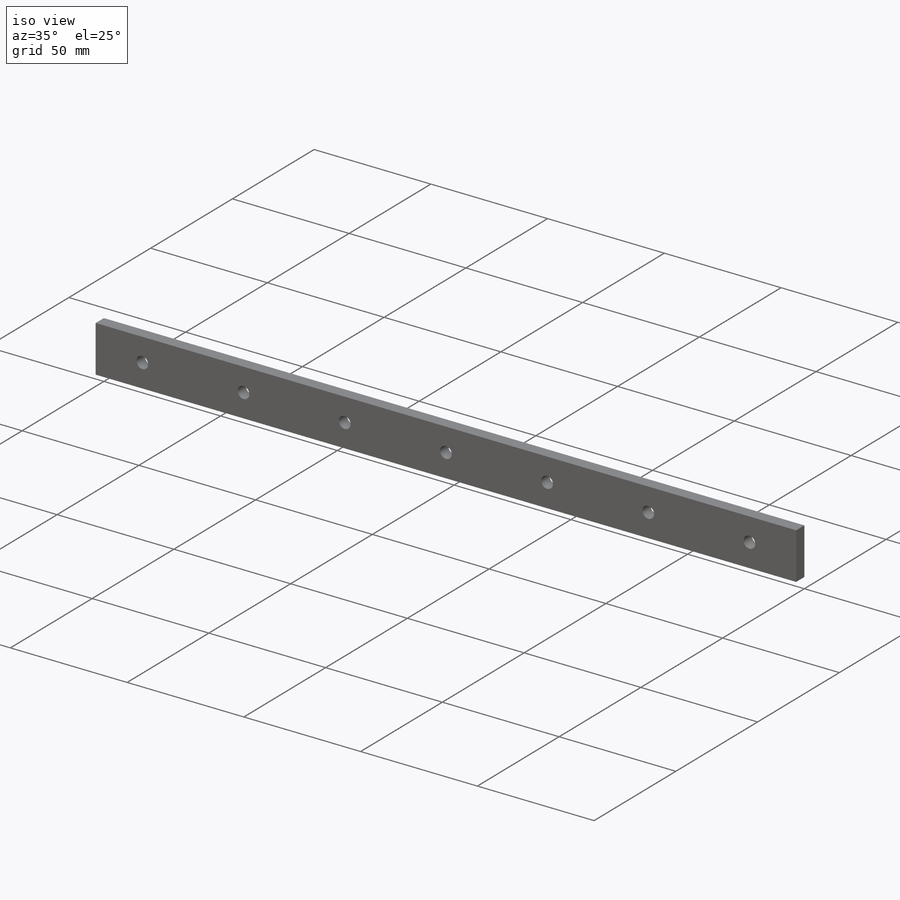
[diagram: iso view]
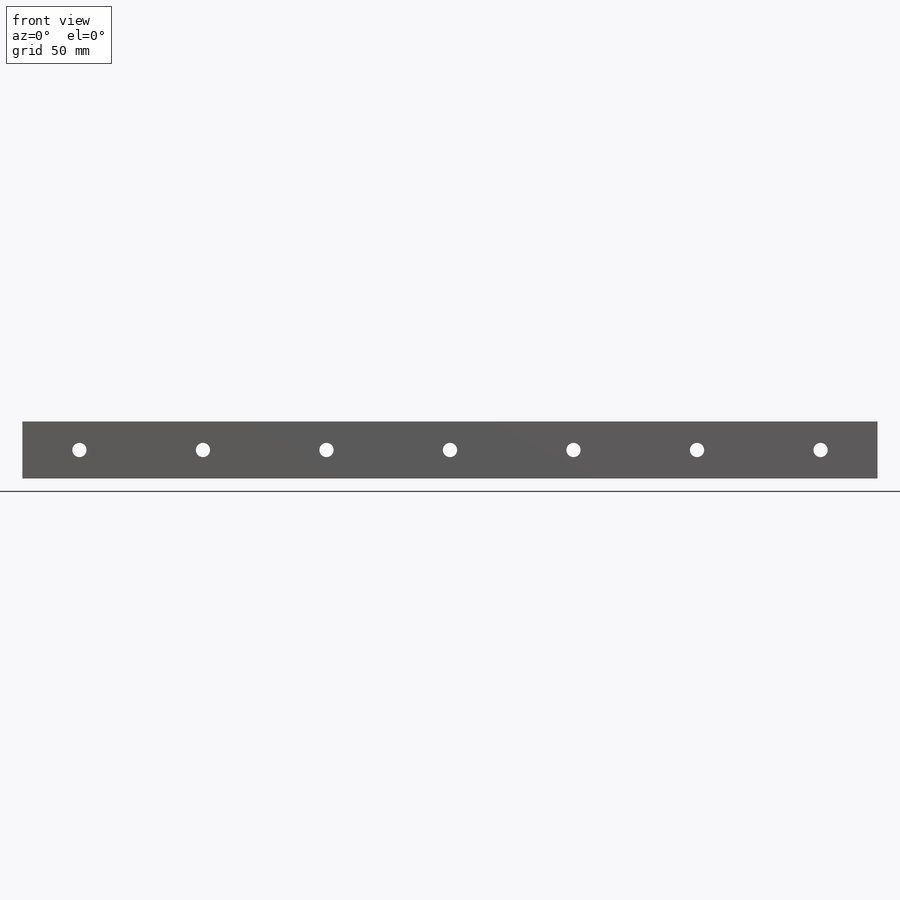
[diagram: front view]
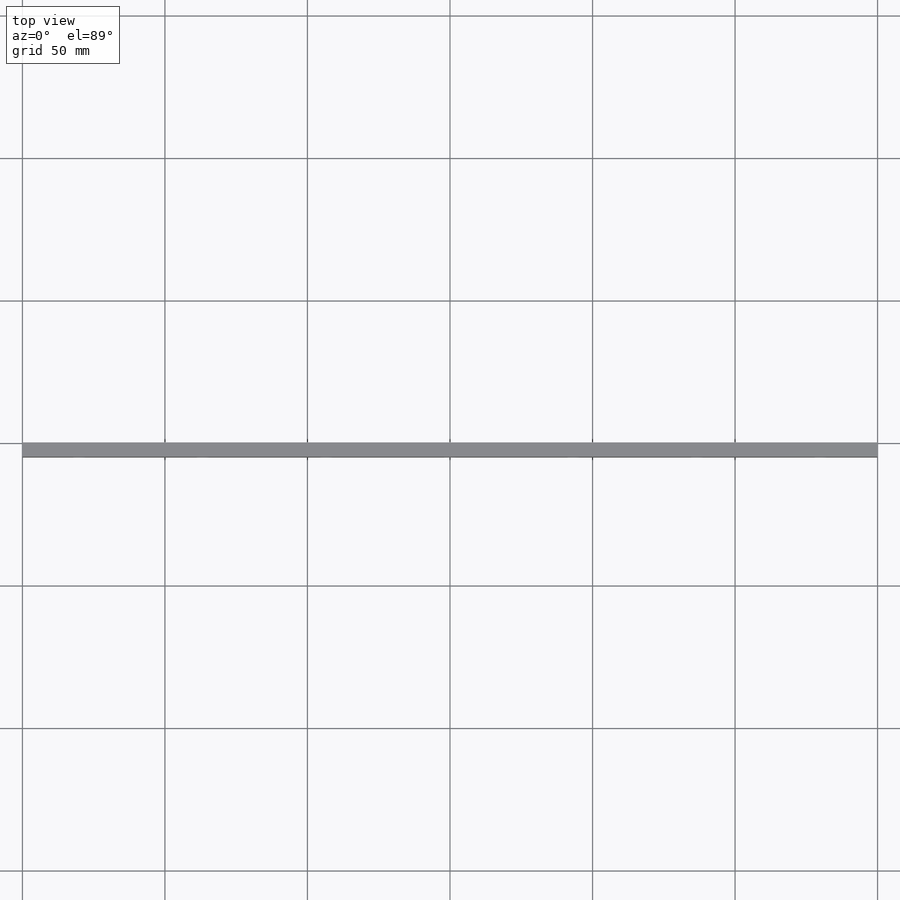
[diagram: top view]
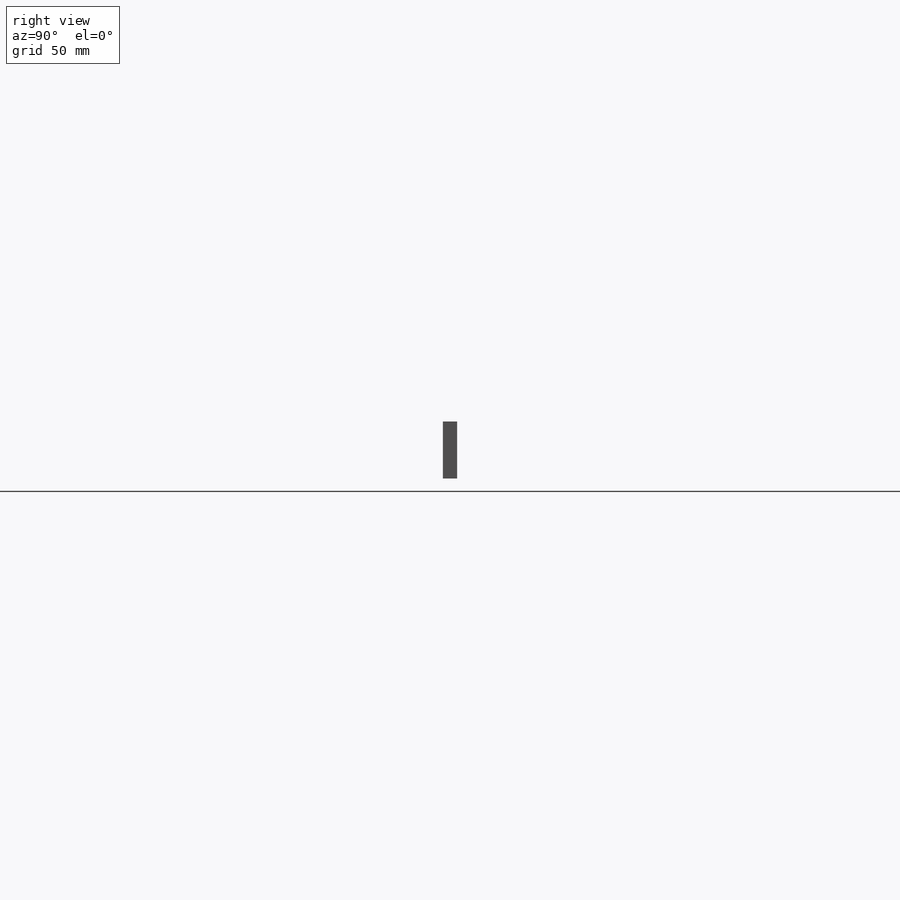
[diagram: right view]
SOLIDWORKS PART (.sldprt)
format: sldprt  version: not decoded by parser v0  size: 194,560 bytes
history: native  units: mm
features: sketch x5, plane x3, hole x2, material x1, extrude x1, pattern_linear x1 (+10 scaffold rows collapsed)
feature tree (23):
  scaffold x10  (default folders/planes/origin — collapsed)
  material  "Materiál <není určen>"
  plane  "Přední rovina"
  plane  "Horní rovina"
  plane  "Pravá rovina"
  sketch  "Skica1"  dims[D1=300.0mm D2=20.0mm]
  extrude  "Přidat vysunutím1"  Depth=5mm
  hole  "Ø5.0 (5) průměr díry1"  Diameter=5mm Depth=5mm
  sketch  "Skica3"  dims[D1=20.0mm]
  sketch  "Skica2"  dims[hole-wizard template sketch: 59 standard entries collapsed; hole parameters kept: c18.Průměr díry skrz=5.0mm c18.Hloubka díry skrz=5.0mm]
  hole  "Ø5.0 (5) průměr díry2"  Diameter=5mm Depth=5mm
  sketch  "Skica5"  dims[D1=20.0mm]
  sketch  "Skica4"  dims[hole-wizard template sketch: 59 standard entries collapsed; hole parameters kept: c18.Průměr díry skrz=5.0mm c18.Hloubka díry skrz=5.0mm]
  pattern_linear  "LinPole1"  Count1=6 Count2=1 Spacing1=43.333333mm Spacing2=10mm
decode coverage: 9 of 9 modeling features carry decoded parameters
note: ~ marks probable driven/reference dimensions
note: suppression state not decoded; provenance and decode notes live in map.json
